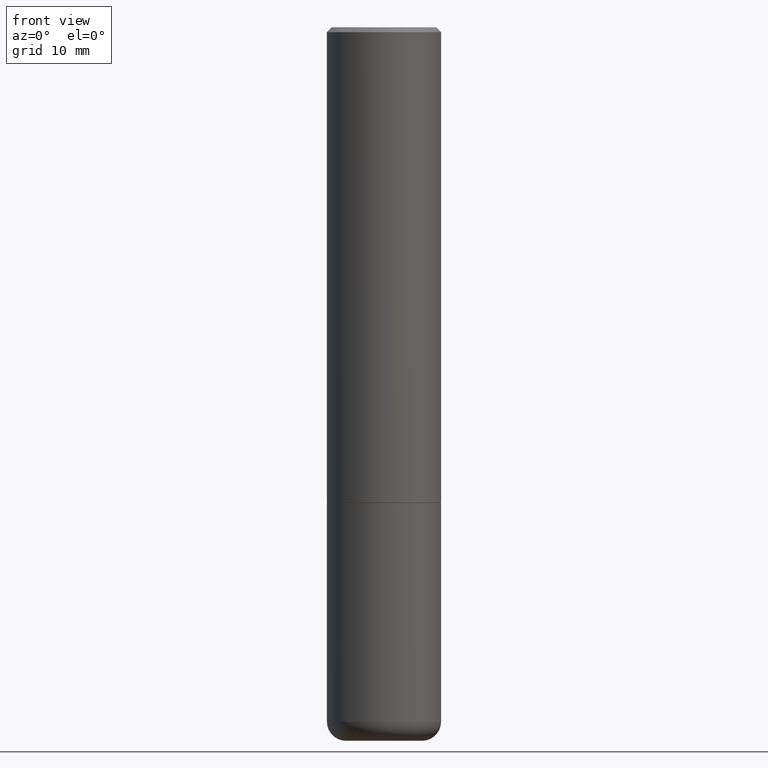
[diagram: clean part render]
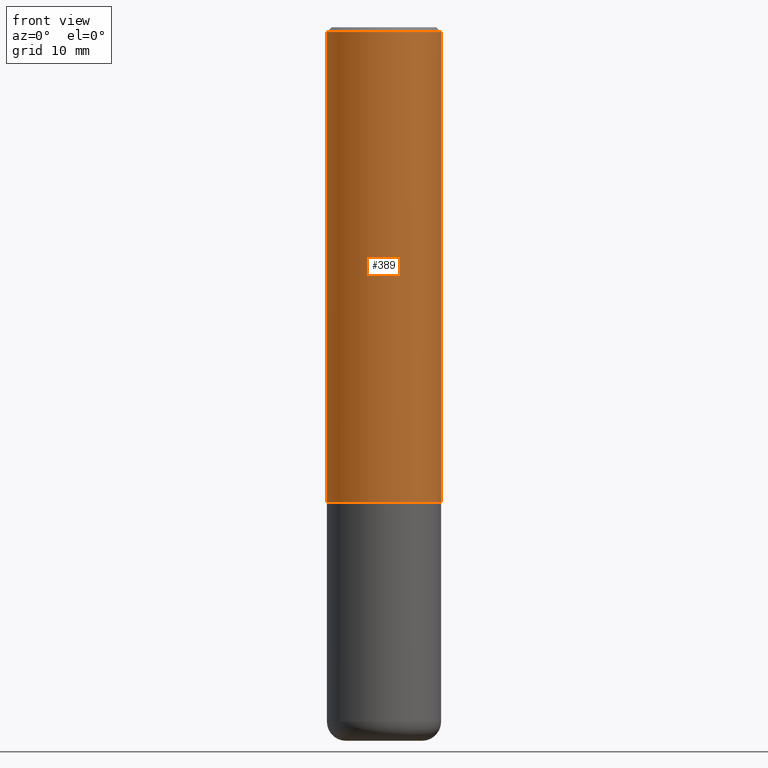
[diagram: same view with one face highlighted and labeled with its STEP entity id]
A machine part, front view. The second image highlights one B-rep face of the part: STEP entity #389.
In plain terms, the highlighted cylindrical surface (partial cylindrical patch) has radius 5.9995 mm, axis along (-0, 0, 1).
Its self-contained STEP definition (entity closure, byte-faithful):
#2 = AXIS2_PLACEMENT_3D ( 'NONE', #147, #84, #40 ) ;
#12 = CARTESIAN_POINT ( 'NONE',  ( -0.2362000000000001321, 1.678301941865357577E-15, -1.161852468318209457E-29 ) ) ;
#16 = ORIENTED_EDGE ( 'NONE', *, *, #279, .F. ) ;
#23 = CARTESIAN_POINT ( 'NONE',  ( 0.000000000000000000, 0.000000000000000000, 0.000000000000000000 ) ) ;
#25 = FACE_OUTER_BOUND ( 'NONE', #317, .T. ) ;
#27 = DIRECTION ( 'NONE',  ( -2.445468806185136877E-29, 3.491481338843145188E-15, 1.000000000000000000 ) ) ;
#31 = DIRECTION ( 'NONE',  ( 1.000000000000000000, -6.982962677686266711E-15, 0.000000000000000000 ) ) ;
#40 = DIRECTION ( 'NONE',  ( 1.000000000000000000, -6.982962677686265922E-15, 0.000000000000000000 ) ) ;
#45 = DIRECTION ( 'NONE',  ( -2.445468806185136877E-29, 3.491481338843145188E-15, 1.000000000000000000 ) ) ;
#46 = ORIENTED_EDGE ( 'NONE', *, *, #144, .T. ) ;
#79 = VECTOR ( 'NONE', #27, 39.37007874015748143 ) ;
#84 = DIRECTION ( 'NONE',  ( -2.445468806185136597E-29, 3.491481338843145583E-15, 1.000000000000000000 ) ) ;
#109 = AXIS2_PLACEMENT_3D ( 'NONE', #373, #155, #31 ) ;
#132 = ORIENTED_EDGE ( 'NONE', *, *, #370, .F. ) ;
#133 = CARTESIAN_POINT ( 'NONE',  ( 0.2361999999999999933, -1.690279253850498771E-15, -0.02000000000000005246 ) ) ;
#137 = VERTEX_POINT ( 'NONE', #278 ) ;
#140 = CARTESIAN_POINT ( 'NONE',  ( -0.2361999999999999933, 1.579546157692633030E-15, -0.02000000000000005246 ) ) ;
#144 = EDGE_CURVE ( 'NONE', #137, #175, #214, .T. ) ;
#147 = CARTESIAN_POINT ( 'NONE',  ( 4.811459876169255671E-29, -6.869489534173887122E-15, -1.967499999999999805 ) ) ;
#155 = DIRECTION ( 'NONE',  ( -2.445468806185136597E-29, 3.491481338843145583E-15, 1.000000000000000000 ) ) ;
#161 = EDGE_CURVE ( 'NONE', #175, #293, #185, .T. ) ;
#174 = LINE ( 'NONE', #12, #368 ) ;
#175 = VERTEX_POINT ( 'NONE', #234 ) ;
#185 = LINE ( 'NONE', #188, #79 ) ;
#188 = CARTESIAN_POINT ( 'NONE',  ( 0.2362000000000001321, -1.649375784469497117E-15, 1.151752954443000789E-29 ) ) ;
#190 = ORIENTED_EDGE ( 'NONE', *, *, #161, .T. ) ;
#214 = CIRCLE ( 'NONE', #2, 0.2362000000000002431 ) ;
#234 = CARTESIAN_POINT ( 'NONE',  ( 0.2362000000000002431, -8.518865318643385225E-15, -1.967499999999999805 ) ) ;
#267 = CIRCLE ( 'NONE', #109, 0.2361999999999999933 ) ;
#277 = CYLINDRICAL_SURFACE ( 'NONE', #412, 0.2362000000000001321 ) ;
#278 = CARTESIAN_POINT ( 'NONE',  ( -0.2362000000000002431, -1.791357638610016055E-15, -1.967499999999999805 ) ) ;
#279 = EDGE_CURVE ( 'NONE', #137, #281, #174, .T. ) ;
#281 = VERTEX_POINT ( 'NONE', #140 ) ;
#293 = VERTEX_POINT ( 'NONE', #133 ) ;
#302 = DIRECTION ( 'NONE',  ( 1.000000000000000000, -6.982962677686266711E-15, 4.876176775795936353E-29 ) ) ;
#317 = EDGE_LOOP ( 'NONE', ( #16, #46, #190, #132 ) ) ;
#338 = DIRECTION ( 'NONE',  ( -2.445468806185136597E-29, 3.491481338843145583E-15, 1.000000000000000000 ) ) ;
#368 = VECTOR ( 'NONE', #45, 39.37007874015748143 ) ;
#370 = EDGE_CURVE ( 'NONE', #281, #293, #267, .T. ) ;
#373 = CARTESIAN_POINT ( 'NONE',  ( 4.890937612370285420E-31, -6.982962677686308865E-17, -0.02000000000000005246 ) ) ;
#389 = ADVANCED_FACE ( 'NONE', ( #25 ), #277, .T. ) ;
#412 = AXIS2_PLACEMENT_3D ( 'NONE', #23, #338, #302 ) ;